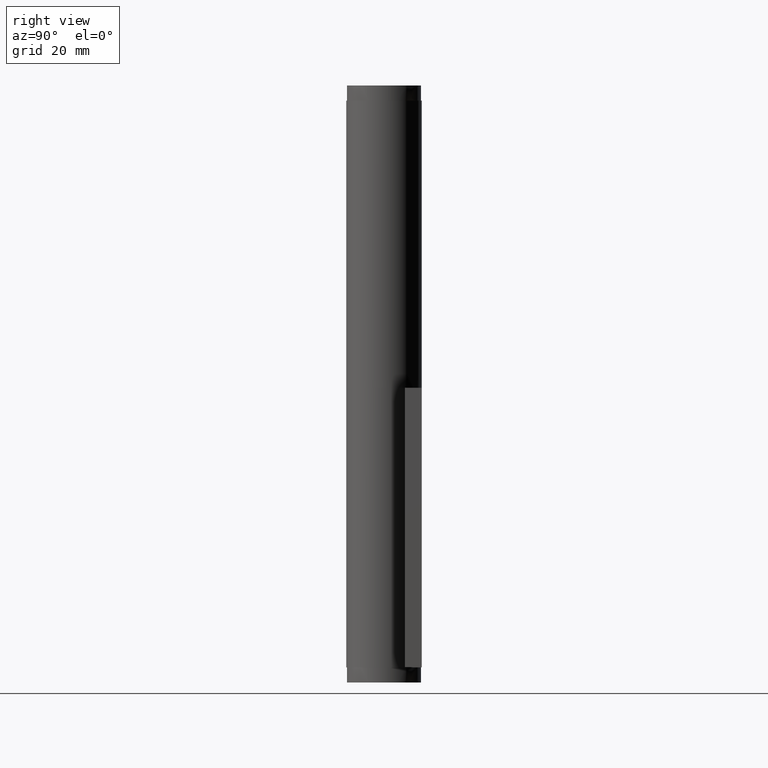
[diagram: clean part render]
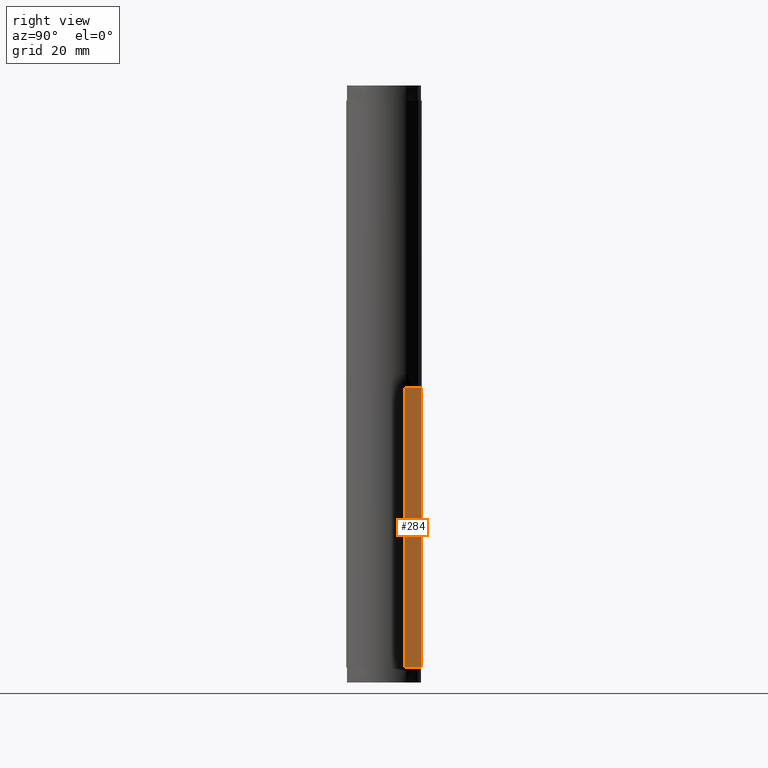
[diagram: same view with one face highlighted and labeled with its STEP entity id]
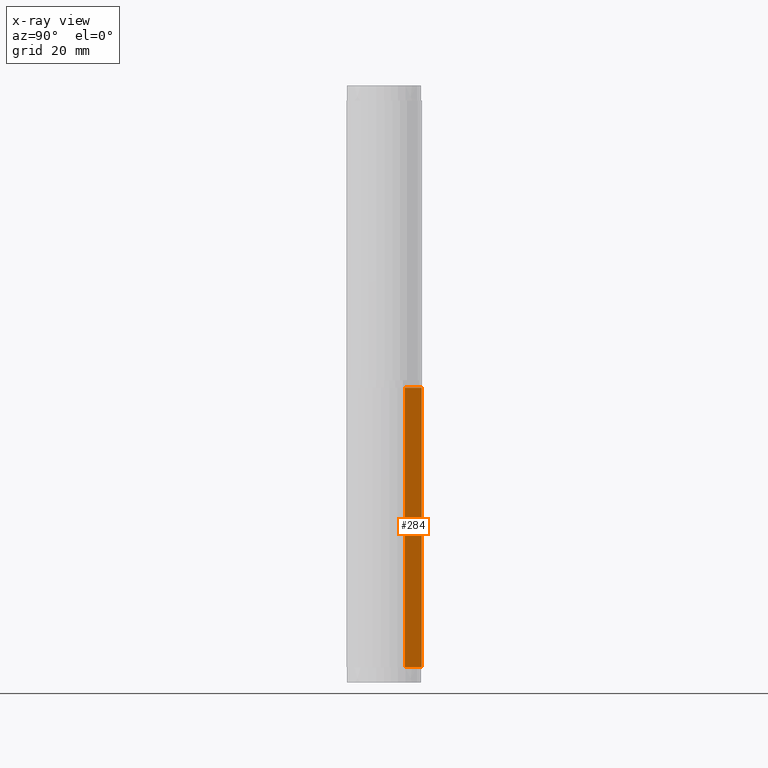
[diagram: x-ray of the same camera — body ghosted, the highlighted face saturated]
A machine part, right view. The second image highlights one B-rep face of the part: STEP entity #284.
The next image is the same camera in x-ray: the body ghosted, the highlighted face saturated — about 0% of this face is hidden behind the body in this view.
In plain terms, the highlighted face is a freeform B-spline surface patch.
Its self-contained STEP definition (entity closure, byte-faithful):
#100=CARTESIAN_POINT('',(55.0,10.0,0.0));
#101=VERTEX_POINT('',#100);
#107=CARTESIAN_POINT('',(55.0,5.500000000000000,0.0));
#108=VERTEX_POINT('',#107);
#109=CARTESIAN_POINT('',(55.0,5.500000000000000,0.0));
#110=CARTESIAN_POINT('',(55.0,10.0,0.0));
#111=QUASI_UNIFORM_CURVE('',1,(#109,#110),.UNSPECIFIED.,.F.,.U.);
#112=EDGE_CURVE('',#108,#101,#111,.T.);
#150=CARTESIAN_POINT('',(55.0,5.500000000000000,74.0));
#151=VERTEX_POINT('',#150);
#157=CARTESIAN_POINT('',(55.0,10.0,74.0));
#158=VERTEX_POINT('',#157);
#159=CARTESIAN_POINT('',(55.0,5.500000000000000,74.0));
#160=CARTESIAN_POINT('',(55.0,10.0,74.0));
#161=QUASI_UNIFORM_CURVE('',1,(#159,#160),.UNSPECIFIED.,.F.,.U.);
#162=EDGE_CURVE('',#151,#158,#161,.T.);
#261=CARTESIAN_POINT('',(55.0,10.0,74.0));
#262=CARTESIAN_POINT('',(55.0,10.0,0.0));
#263=QUASI_UNIFORM_CURVE('',1,(#261,#262),.UNSPECIFIED.,.F.,.U.);
#264=EDGE_CURVE('',#158,#101,#263,.T.);
#269=CARTESIAN_POINT('',(55.0,5.275225008721874,-3.696299856573641));
#270=CARTESIAN_POINT('',(55.0,5.275225008721874,77.696301841408314));
#271=CARTESIAN_POINT('',(55.0,10.224775111977531,-3.696299856573641));
#272=CARTESIAN_POINT('',(55.0,10.224775111977531,77.696301841408314));
#273=B_SPLINE_SURFACE_WITH_KNOTS('',1,1,((#269,#271),(#270,#272)),.UNSPECIFIED.,.F.,.F.,.U.,(2,2),(2,2),(0.0,81.392601697981959),(0.0,4.949550103255657),.UNSPECIFIED.);
#274=ORIENTED_EDGE('',*,*,#112,.T.);
#275=ORIENTED_EDGE('',*,*,#264,.F.);
#276=ORIENTED_EDGE('',*,*,#162,.F.);
#277=CARTESIAN_POINT('',(55.0,5.500000000000000,74.0));
#278=CARTESIAN_POINT('',(55.0,5.500000000000000,0.0));
#279=QUASI_UNIFORM_CURVE('',1,(#277,#278),.UNSPECIFIED.,.F.,.U.);
#280=EDGE_CURVE('',#151,#108,#279,.T.);
#281=ORIENTED_EDGE('',*,*,#280,.T.);
#282=EDGE_LOOP('',(#274,#275,#276,#281));
#283=FACE_OUTER_BOUND('',#282,.T.);
#284=ADVANCED_FACE('',(#283),#273,.F.);